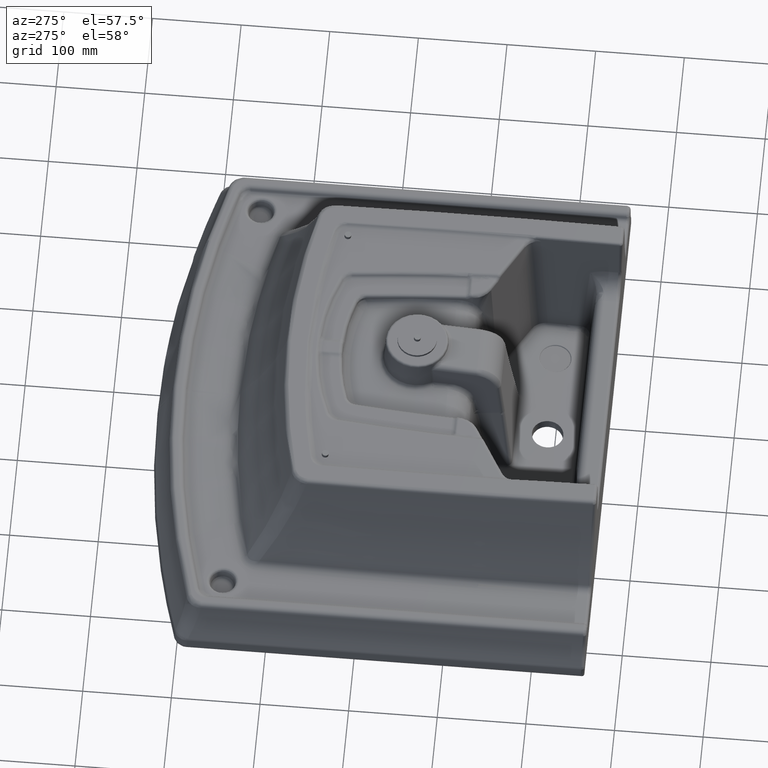
[diagram: clean part render]
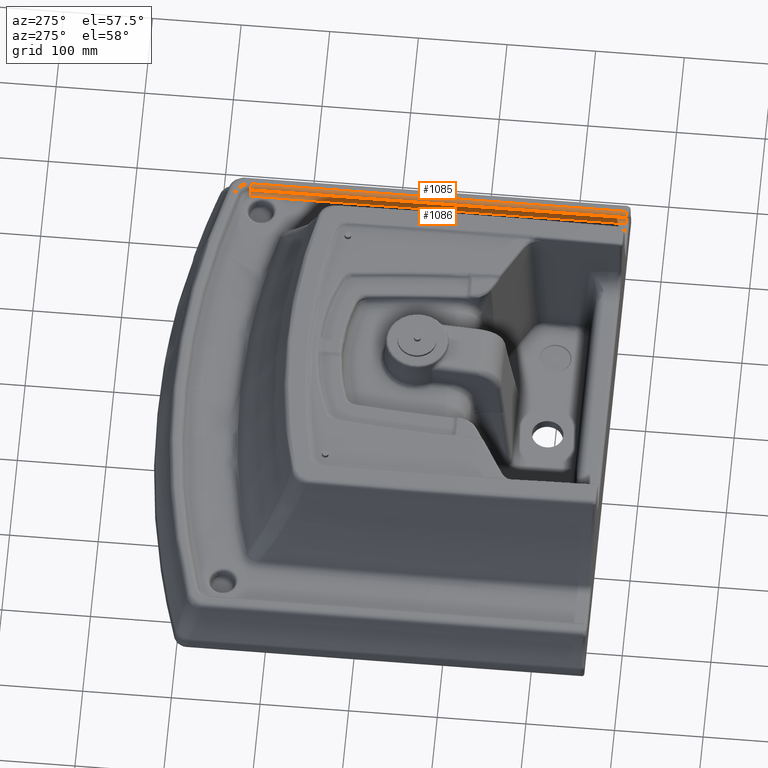
[diagram: same view with one multi-face feature highlighted, each face labeled with its STEP entity id]
A machine part, auxiliary view. The highlighted faces form ONE feature: a constant-radius fillet chain: 2 tangent blend faces with common blend radius 6 mm. The faces share edges in the B-rep.
Their STEP definitions:
[1] entity #1085 (Cylinder):
#150=ELLIPSE('',#7491,6.00012513048028,6.00000000000001);
#1085=ADVANCED_FACE('',(#1613),#1359,.T.);
#1359=CYLINDRICAL_SURFACE('',#7532,6.00000000000001);
#1613=FACE_OUTER_BOUND('',#2083,.T.);
#2083=EDGE_LOOP('',(#3686,#3687,#3688,#3689));
#2389=LINE('',#19961,#2473);
#2473=VECTOR('',#8189,1.);
#3686=ORIENTED_EDGE('',*,*,#6126,.T.);
#3687=ORIENTED_EDGE('',*,*,#6091,.T.);
#3688=ORIENTED_EDGE('',*,*,#6127,.T.);
#3689=ORIENTED_EDGE('',*,*,#6003,.T.);
#5147=VERTEX_POINT('',#17826);
#5148=VERTEX_POINT('',#17847);
#5204=VERTEX_POINT('',#19373);
#5205=VERTEX_POINT('',#19380);
#6003=EDGE_CURVE('',#5147,#5148,#150,.T.);
#6091=EDGE_CURVE('',#5205,#5204,#6963,.T.);
#6126=EDGE_CURVE('',#5148,#5205,#2389,.T.);
#6127=EDGE_CURVE('',#5204,#5147,#6990,.T.);
#6963=B_SPLINE_CURVE_WITH_KNOTS('',3,(#19374,#19375,#19376,#19377,#19378,
#19379),.UNSPECIFIED.,.F.,.F.,(4,2,4),(0.,0.5,1.),.UNSPECIFIED.);
#6990=B_SPLINE_CURVE_WITH_KNOTS('',3,(#19962,#19963,#19964,#19965),
 .UNSPECIFIED.,.F.,.F.,(4,4),(0.,1.),.UNSPECIFIED.);
#7491=AXIS2_PLACEMENT_3D('',#17848,#8100,#8101);
#7532=AXIS2_PLACEMENT_3D('',#19966,#8190,#8191);
#8100=DIRECTION('',(0.,-0.00645823933633428,0.99997914535488));
#8101=DIRECTION('',(0.,-0.99997914535488,-0.00645823933633428));
#8189=DIRECTION('',(0.,-1.04083408558608E-017,1.));
#8190=DIRECTION('',(0.,1.04083408558608E-017,-1.));
#8191=DIRECTION('',(0.996194698091746,0.087155742747665,0.));
#17826=CARTESIAN_POINT('',(280.372987003764,102.946401307847,-208.390444239882));
#17847=CARTESIAN_POINT('',(286.029841419261,98.9464008154053,-208.416277749979));
#17848=CARTESIAN_POINT('',(286.029841427361,104.946400815405,-208.377527505838));
#19373=CARTESIAN_POINT('',(280.372769434561,102.946410110575,215.243582391139));
#19374=CARTESIAN_POINT('',(286.029841419261,98.9464008154053,215.243576138239));
#19375=CARTESIAN_POINT('',(284.798868446281,98.9464008170672,215.243576138239));
#19376=CARTESIAN_POINT('',(283.570787006947,99.3367354227416,215.243576138239));
#19377=CARTESIAN_POINT('',(281.560626195635,100.758154204624,215.243576138239));
#19378=CARTESIAN_POINT('',(280.783268654832,101.785899493974,215.243576138239));
#19379=CARTESIAN_POINT('',(280.372960064411,102.946477505498,215.243576138239));
#19380=CARTESIAN_POINT('',(286.029841419261,98.9464964668953,215.243576137839));
#19961=CARTESIAN_POINT('',(286.029841419261,98.9464008154053,217.145672440139));
#19962=CARTESIAN_POINT('',(280.372960064412,102.946477505495,215.243582391139));
#19963=CARTESIAN_POINT('',(280.372969044025,102.946452106219,74.0322401807986));
#19964=CARTESIAN_POINT('',(280.372978023809,102.946426707003,-67.1791020295419));
#19965=CARTESIAN_POINT('',(280.372987003764,102.946401307847,-208.390444239882));
#19966=CARTESIAN_POINT('',(286.029841427361,104.946400815405,217.145672440139));
[2] entity #1086 (Cylinder):
#149=ELLIPSE('',#7489,6.00242801595815,6.00000000000001);
#1086=ADVANCED_FACE('',(#1614),#1360,.F.);
#1360=CYLINDRICAL_SURFACE('',#7533,6.00000000000001);
#1614=FACE_OUTER_BOUND('',#2084,.T.);
#2084=EDGE_LOOP('',(#3690,#3691,#3692,#3693));
#2390=LINE('',#19967,#2474);
#2474=VECTOR('',#8192,1.);
#3690=ORIENTED_EDGE('',*,*,#6127,.F.);
#3691=ORIENTED_EDGE('',*,*,#6095,.T.);
#3692=ORIENTED_EDGE('',*,*,#6128,.T.);
#3693=ORIENTED_EDGE('',*,*,#6001,.T.);
#5146=VERTEX_POINT('',#17822);
#5147=VERTEX_POINT('',#17826);
#5204=VERTEX_POINT('',#19373);
#5207=VERTEX_POINT('',#19466);
#6001=EDGE_CURVE('',#5146,#5147,#149,.T.);
#6095=EDGE_CURVE('',#5204,#5207,#6967,.T.);
#6127=EDGE_CURVE('',#5204,#5147,#6990,.T.);
#6128=EDGE_CURVE('',#5207,#5146,#2390,.T.);
#6967=B_SPLINE_CURVE_WITH_KNOTS('',3,(#19467,#19468,#19469,#19470,#19471,
#19472),.UNSPECIFIED.,.F.,.F.,(4,2,4),(0.,0.5,1.),.UNSPECIFIED.);
#6990=B_SPLINE_CURVE_WITH_KNOTS('',3,(#19962,#19963,#19964,#19965),
 .UNSPECIFIED.,.F.,.F.,(4,4),(0.,1.),.UNSPECIFIED.);
#7489=AXIS2_PLACEMENT_3D('',#17827,#8096,#8097);
#7533=AXIS2_PLACEMENT_3D('',#19968,#8193,#8194);
#8096=DIRECTION('',(0.,0.0284402469374272,-0.999595494364666));
#8097=DIRECTION('',(0.,0.999595494364665,0.0284402469374272));
#8192=DIRECTION('',(3.59738114852313E-007,7.26854861021753E-012,-0.999999999999936));
#8193=DIRECTION('',(0.,-1.04083408558608E-017,1.));
#8194=DIRECTION('',(0.,-0.999999999999999,0.));
#17822=CARTESIAN_POINT('',(274.716131902525,106.946400815385,-208.276637230553));
#17826=CARTESIAN_POINT('',(280.372987003764,102.946401307847,-208.390444239882));
#17827=CARTESIAN_POINT('',(274.716132928361,100.946400815405,-208.447347765551));
#19373=CARTESIAN_POINT('',(280.372769434561,102.946410110575,215.243582391139));
#19466=CARTESIAN_POINT('',(274.715979546161,106.946400812305,215.243686087439));
#19467=CARTESIAN_POINT('',(280.372960023493,102.946477617876,215.244703150107));
#19468=CARTESIAN_POINT('',(279.962620475291,104.107042987968,215.244429225948));
#19469=CARTESIAN_POINT('',(279.185236558195,105.134766041705,215.244155301789));
#19470=CARTESIAN_POINT('',(277.175040927009,106.556130040355,215.24360745347));
#19471=CARTESIAN_POINT('',(275.94695110157,106.946432244287,215.243333529311));
#19472=CARTESIAN_POINT('',(274.715979728188,106.94640081345,215.243059605152));
#19962=CARTESIAN_POINT('',(280.372960064412,102.946477505495,215.243582391139));
#19963=CARTESIAN_POINT('',(280.372969044025,102.946452106219,74.0322401807986));
#19964=CARTESIAN_POINT('',(280.372978023809,102.946426707003,-67.1791020295419));
#19965=CARTESIAN_POINT('',(280.372987003764,102.946401307847,-208.390444239882));
#19967=CARTESIAN_POINT('',(274.716132928361,106.946400815405,-211.128254477562));
#19968=CARTESIAN_POINT('',(274.716132928361,100.946400815405,-213.486336725562));